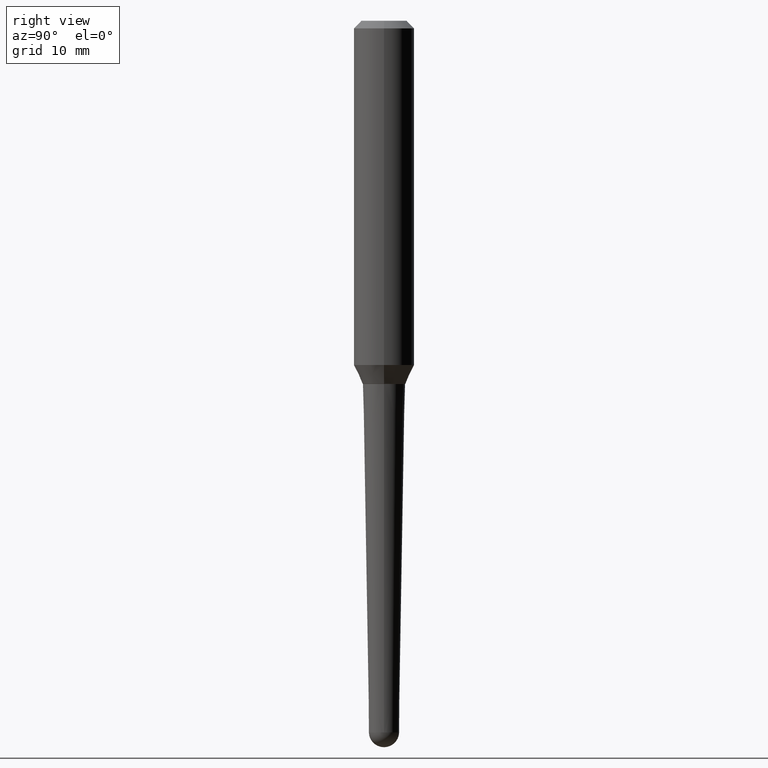
[diagram: clean part render]
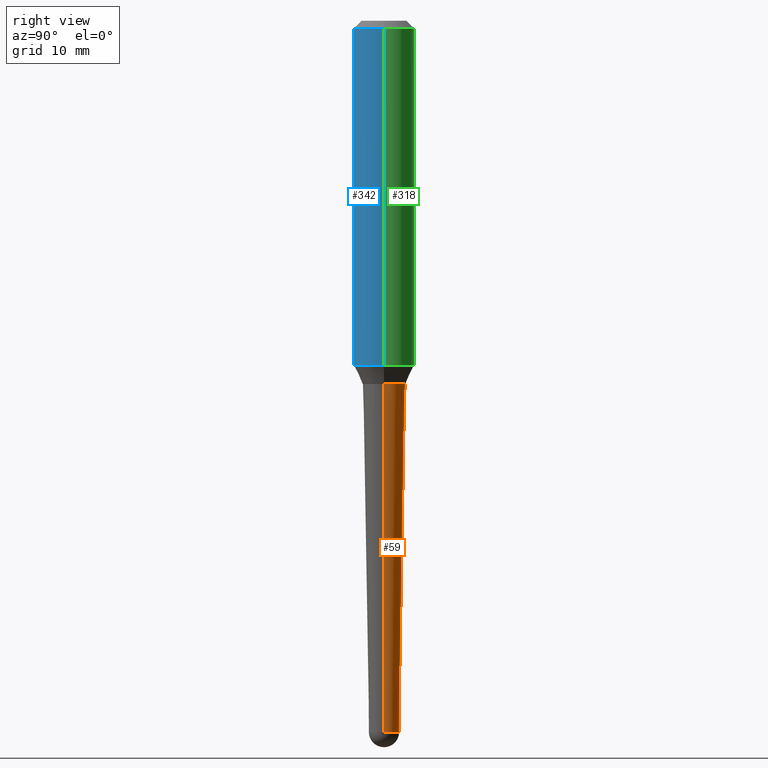
[diagram: same view with three faces highlighted in distinct colors, each labeled with its STEP entity id]
A machine part, right view with three faces highlighted in distinct colors.
Their STEP definitions:

[orange] entity #59 — the highlighted conical surface has half-angle 1 deg.
#9 = FACE_OUTER_BOUND ( 'NONE', #251, .T. ) ;
#15 = ORIENTED_EDGE ( 'NONE', *, *, #173, .T. ) ;
#31 = AXIS2_PLACEMENT_3D ( 'NONE', #462, #394, #75 ) ;
#39 = AXIS2_PLACEMENT_3D ( 'NONE', #106, #454, #210 ) ;
#48 = EDGE_CURVE ( 'NONE', #459, #85, #128, .T. ) ;
#59 = ADVANCED_FACE ( 'NONE', ( #9 ), #270, .T. ) ;
#75 = DIRECTION ( 'NONE',  ( 1.000000000000000000, -6.982962677686258822E-15, 0.000000000000000000 ) ) ;
#85 = VERTEX_POINT ( 'NONE', #257 ) ;
#88 = CARTESIAN_POINT ( 'NONE',  ( -0.06249048094727445435, -9.816013281901434957E-15, -2.938590775402329935 ) ) ;
#106 = CARTESIAN_POINT ( 'NONE',  ( 7.186232075389790477E-29, -1.026003485481384412E-14, -2.938590775402329935 ) ) ;
#128 = CIRCLE ( 'NONE', #359, 0.08760117633705687135 ) ;
#131 = CARTESIAN_POINT ( 'NONE',  ( 4.440215729124799627E-16, 0.06249048094726421254, -2.938590775402329935 ) ) ;
#135 = CIRCLE ( 'NONE', #39, 0.06249048094727445435 ) ;
#145 = ORIENTED_EDGE ( 'NONE', *, *, #276, .T. ) ;
#152 = AXIS2_PLACEMENT_3D ( 'NONE', #311, #196, #337 ) ;
#170 = CARTESIAN_POINT ( 'NONE',  ( -0.06249048094727445435, -7.215395747631399809E-15, -2.938590775402329935 ) ) ;
#171 = VECTOR ( 'NONE', #232, 39.37007874015748143 ) ;
#173 = EDGE_CURVE ( 'NONE', #304, #85, #347, .T. ) ;
#182 = VERTEX_POINT ( 'NONE', #131 ) ;
#186 = ORIENTED_EDGE ( 'NONE', *, *, #421, .T. ) ;
#196 = DIRECTION ( 'NONE',  ( -2.445468806185136597E-29, 3.491481338843145583E-15, 1.000000000000000000 ) ) ;
#210 = DIRECTION ( 'NONE',  ( 1.000000000000000000, -6.982962677686258822E-15, 0.000000000000000000 ) ) ;
#230 = LINE ( 'NONE', #444, #329 ) ;
#232 = DIRECTION ( 'NONE',  ( -0.01745240643728342492, 3.614956375479315570E-15, 0.9998476951563912696 ) ) ;
#249 = DIRECTION ( 'NONE',  ( 1.000000000000000000, -6.982962677686271444E-15, 0.000000000000000000 ) ) ;
#251 = EDGE_LOOP ( 'NONE', ( #186, #15, #409, #269, #145 ) ) ;
#257 = CARTESIAN_POINT ( 'NONE',  ( -0.08760117633705687135, -4.614778213361364662E-15, -1.500000000000000222 ) ) ;
#260 = EDGE_CURVE ( 'NONE', #285, #459, #230, .T. ) ;
#261 = DIRECTION ( 'NONE',  ( -2.445468806185136597E-29, 3.491481338843145583E-15, 1.000000000000000000 ) ) ;
#269 = ORIENTED_EDGE ( 'NONE', *, *, #260, .F. ) ;
#270 = CONICAL_SURFACE ( 'NONE', #31, 0.06249048094727445435, 0.01745329251994320874 ) ;
#276 = EDGE_CURVE ( 'NONE', #285, #182, #388, .T. ) ;
#285 = VERTEX_POINT ( 'NONE', #412 ) ;
#292 = CARTESIAN_POINT ( 'NONE',  ( 3.668203209277704895E-29, -5.237222008264718177E-15, -1.500000000000000222 ) ) ;
#304 = VERTEX_POINT ( 'NONE', #170 ) ;
#311 = CARTESIAN_POINT ( 'NONE',  ( 7.186232075389790477E-29, -1.026003485481384412E-14, -2.938590775402329935 ) ) ;
#329 = VECTOR ( 'NONE', #410, 39.37007874015748143 ) ;
#337 = DIRECTION ( 'NONE',  ( 1.000000000000000000, -6.982962677686258822E-15, 0.000000000000000000 ) ) ;
#347 = LINE ( 'NONE', #88, #171 ) ;
#359 = AXIS2_PLACEMENT_3D ( 'NONE', #292, #261, #249 ) ;
#388 = CIRCLE ( 'NONE', #152, 0.06249048094727445435 ) ;
#394 = DIRECTION ( 'NONE',  ( -2.445468806185136597E-29, 3.491481338843145583E-15, 1.000000000000000000 ) ) ;
#409 = ORIENTED_EDGE ( 'NONE', *, *, #48, .F. ) ;
#410 = DIRECTION ( 'NONE',  ( 0.01745240643728342492, 3.369080066536508461E-15, 0.9998476951563912696 ) ) ;
#412 = CARTESIAN_POINT ( 'NONE',  ( 0.06249048094727445435, -8.272670652063563358E-15, -2.938590775402329935 ) ) ;
#420 = CARTESIAN_POINT ( 'NONE',  ( 0.08760117633705687135, -5.848937753147799115E-15, -1.500000000000000222 ) ) ;
#421 = EDGE_CURVE ( 'NONE', #182, #304, #135, .T. ) ;
#444 = CARTESIAN_POINT ( 'NONE',  ( 0.06249048094727445435, -1.069640355097932523E-14, -2.938590775402329935 ) ) ;
#454 = DIRECTION ( 'NONE',  ( -2.445468806185136597E-29, 3.491481338843145583E-15, 1.000000000000000000 ) ) ;
#459 = VERTEX_POINT ( 'NONE', #420 ) ;
#462 = CARTESIAN_POINT ( 'NONE',  ( 7.186232075389790477E-29, -1.026003485481384412E-14, -2.938590775402329935 ) ) ;

[blue] entity #342 — the highlighted cylindrical surface (edge-blend (fillet) strip) has radius 3.175 mm, axis along (-0, 0, 1).
#21 = CARTESIAN_POINT ( 'NONE',  ( 3.476093222021523677E-29, -4.962939860885091843E-15, -1.421442470756407950 ) ) ;
#23 = CARTESIAN_POINT ( 'NONE',  ( -0.1249999999999996808, -1.647845906661844056E-15, -0.03125000000000002082 ) ) ;
#25 = EDGE_CURVE ( 'NONE', #124, #235, #216, .T. ) ;
#29 = DIRECTION ( 'NONE',  ( 1.000000000000000000, -6.982962677686266711E-15, 4.852736867747369010E-29 ) ) ;
#42 = EDGE_CURVE ( 'NONE', #177, #460, #82, .T. ) ;
#43 = DIRECTION ( 'NONE',  ( -2.445468806185136877E-29, 3.491481338843145188E-15, 1.000000000000000000 ) ) ;
#52 = ORIENTED_EDGE ( 'NONE', *, *, #42, .T. ) ;
#82 = LINE ( 'NONE', #364, #96 ) ;
#87 = ORIENTED_EDGE ( 'NONE', *, *, #123, .F. ) ;
#94 = CARTESIAN_POINT ( 'NONE',  ( 0.1250000000000001665, -5.835810195595875971E-15, -1.421442470756407950 ) ) ;
#96 = VECTOR ( 'NONE', #43, 39.37007874015748143 ) ;
#103 = DIRECTION ( 'NONE',  ( -2.445468806185136597E-29, 3.491481338843145583E-15, 1.000000000000000000 ) ) ;
#123 = EDGE_CURVE ( 'NONE', #235, #460, #338, .T. ) ;
#124 = VERTEX_POINT ( 'NONE', #447 ) ;
#126 = CARTESIAN_POINT ( 'NONE',  ( 7.642090019328557120E-31, -1.091087918388483734E-16, -0.03125000000000002082 ) ) ;
#130 = EDGE_CURVE ( 'NONE', #124, #177, #209, .T. ) ;
#169 = FACE_OUTER_BOUND ( 'NONE', #193, .T. ) ;
#177 = VERTEX_POINT ( 'NONE', #94 ) ;
#193 = EDGE_LOOP ( 'NONE', ( #344, #265, #52, #87 ) ) ;
#209 = CIRCLE ( 'NONE', #315, 0.1250000000000001665 ) ;
#216 = LINE ( 'NONE', #219, #436 ) ;
#219 = CARTESIAN_POINT ( 'NONE',  ( -0.1249999999999999306, 8.881784197001268101E-16, 5.931196827434234637E-16 ) ) ;
#235 = VERTEX_POINT ( 'NONE', #23 ) ;
#237 = DIRECTION ( 'NONE',  ( -2.445468806185136597E-29, 3.491481338843145583E-15, 1.000000000000000000 ) ) ;
#250 = AXIS2_PLACEMENT_3D ( 'NONE', #126, #237, #266 ) ;
#253 = CARTESIAN_POINT ( 'NONE',  ( 0.1249999999999996808, -9.819791265496294812E-16, -0.03125000000000002082 ) ) ;
#265 = ORIENTED_EDGE ( 'NONE', *, *, #130, .T. ) ;
#266 = DIRECTION ( 'NONE',  ( 1.000000000000000000, -6.982962677686266711E-15, 0.000000000000000000 ) ) ;
#283 = CYLINDRICAL_SURFACE ( 'NONE', #404, 0.1249999999999999306 ) ;
#290 = DIRECTION ( 'NONE',  ( -2.445468806185136877E-29, 3.491481338843145188E-15, 1.000000000000000000 ) ) ;
#315 = AXIS2_PLACEMENT_3D ( 'NONE', #21, #335, #373 ) ;
#320 = CARTESIAN_POINT ( 'NONE',  ( -1.450455682483482035E-44, 2.070866303999251778E-30, 5.931196827434296760E-16 ) ) ;
#335 = DIRECTION ( 'NONE',  ( -2.445468806185136597E-29, 3.491481338843145583E-15, 1.000000000000000000 ) ) ;
#338 = CIRCLE ( 'NONE', #250, 0.1249999999999996808 ) ;
#342 = ADVANCED_FACE ( 'NONE', ( #169 ), #283, .T. ) ;
#344 = ORIENTED_EDGE ( 'NONE', *, *, #25, .F. ) ;
#364 = CARTESIAN_POINT ( 'NONE',  ( 0.1249999999999999306, -8.728703347107807750E-16, 5.931196827434357896E-16 ) ) ;
#373 = DIRECTION ( 'NONE',  ( 1.000000000000000000, -6.982962677686269077E-15, 0.000000000000000000 ) ) ;
#404 = AXIS2_PLACEMENT_3D ( 'NONE', #320, #103, #29 ) ;
#436 = VECTOR ( 'NONE', #290, 39.37007874015748143 ) ;
#447 = CARTESIAN_POINT ( 'NONE',  ( -0.1250000000000001665, -4.074761441184965033E-15, -1.421442470756407950 ) ) ;
#460 = VERTEX_POINT ( 'NONE', #253 ) ;

[green] entity #318 — the highlighted cylindrical surface (edge-blend (fillet) strip) has radius 3.175 mm, axis along (-0, 0, 1).
#23 = CARTESIAN_POINT ( 'NONE',  ( -0.1249999999999996808, -1.647845906661844056E-15, -0.03125000000000002082 ) ) ;
#25 = EDGE_CURVE ( 'NONE', #124, #235, #216, .T. ) ;
#34 = DIRECTION ( 'NONE',  ( -2.445468806185136597E-29, 3.491481338843145583E-15, 1.000000000000000000 ) ) ;
#42 = EDGE_CURVE ( 'NONE', #177, #460, #82, .T. ) ;
#43 = DIRECTION ( 'NONE',  ( -2.445468806185136877E-29, 3.491481338843145188E-15, 1.000000000000000000 ) ) ;
#60 = DIRECTION ( 'NONE',  ( 1.000000000000000000, -6.982962677686266711E-15, 0.000000000000000000 ) ) ;
#62 = DIRECTION ( 'NONE',  ( -2.445468806185136597E-29, 3.491481338843145583E-15, 1.000000000000000000 ) ) ;
#82 = LINE ( 'NONE', #364, #96 ) ;
#91 = CARTESIAN_POINT ( 'NONE',  ( 7.642090019328557120E-31, -1.091087918388483734E-16, -0.03125000000000002082 ) ) ;
#93 = CARTESIAN_POINT ( 'NONE',  ( 3.476093222021523677E-29, -4.962939860885091843E-15, -1.421442470756407950 ) ) ;
#94 = CARTESIAN_POINT ( 'NONE',  ( 0.1250000000000001665, -5.835810195595875971E-15, -1.421442470756407950 ) ) ;
#96 = VECTOR ( 'NONE', #43, 39.37007874015748143 ) ;
#116 = EDGE_LOOP ( 'NONE', ( #192, #202, #368, #233 ) ) ;
#119 = CIRCLE ( 'NONE', #277, 0.1250000000000001665 ) ;
#124 = VERTEX_POINT ( 'NONE', #447 ) ;
#177 = VERTEX_POINT ( 'NONE', #94 ) ;
#192 = ORIENTED_EDGE ( 'NONE', *, *, #288, .T. ) ;
#202 = ORIENTED_EDGE ( 'NONE', *, *, #25, .T. ) ;
#216 = LINE ( 'NONE', #219, #436 ) ;
#219 = CARTESIAN_POINT ( 'NONE',  ( -0.1249999999999999306, 8.881784197001268101E-16, 5.931196827434234637E-16 ) ) ;
#233 = ORIENTED_EDGE ( 'NONE', *, *, #42, .F. ) ;
#235 = VERTEX_POINT ( 'NONE', #23 ) ;
#244 = CARTESIAN_POINT ( 'NONE',  ( -1.450455682483482035E-44, 2.070866303999251778E-30, 5.931196827434296760E-16 ) ) ;
#253 = CARTESIAN_POINT ( 'NONE',  ( 0.1249999999999996808, -9.819791265496294812E-16, -0.03125000000000002082 ) ) ;
#271 = EDGE_CURVE ( 'NONE', #460, #235, #453, .T. ) ;
#277 = AXIS2_PLACEMENT_3D ( 'NONE', #93, #62, #385 ) ;
#288 = EDGE_CURVE ( 'NONE', #177, #124, #119, .T. ) ;
#290 = DIRECTION ( 'NONE',  ( -2.445468806185136877E-29, 3.491481338843145188E-15, 1.000000000000000000 ) ) ;
#318 = ADVANCED_FACE ( 'NONE', ( #419 ), #451, .T. ) ;
#361 = AXIS2_PLACEMENT_3D ( 'NONE', #91, #378, #60 ) ;
#364 = CARTESIAN_POINT ( 'NONE',  ( 0.1249999999999999306, -8.728703347107807750E-16, 5.931196827434357896E-16 ) ) ;
#368 = ORIENTED_EDGE ( 'NONE', *, *, #271, .F. ) ;
#378 = DIRECTION ( 'NONE',  ( -2.445468806185136597E-29, 3.491481338843145583E-15, 1.000000000000000000 ) ) ;
#385 = DIRECTION ( 'NONE',  ( 1.000000000000000000, -6.982962677686269077E-15, 0.000000000000000000 ) ) ;
#390 = DIRECTION ( 'NONE',  ( 1.000000000000000000, -6.982962677686266711E-15, 4.852736867747369010E-29 ) ) ;
#419 = FACE_OUTER_BOUND ( 'NONE', #116, .T. ) ;
#436 = VECTOR ( 'NONE', #290, 39.37007874015748143 ) ;
#447 = CARTESIAN_POINT ( 'NONE',  ( -0.1250000000000001665, -4.074761441184965033E-15, -1.421442470756407950 ) ) ;
#448 = AXIS2_PLACEMENT_3D ( 'NONE', #244, #34, #390 ) ;
#451 = CYLINDRICAL_SURFACE ( 'NONE', #448, 0.1249999999999999306 ) ;
#453 = CIRCLE ( 'NONE', #361, 0.1249999999999996808 ) ;
#460 = VERTEX_POINT ( 'NONE', #253 ) ;